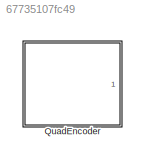
MODEL slx_67735107fc49
KIND model
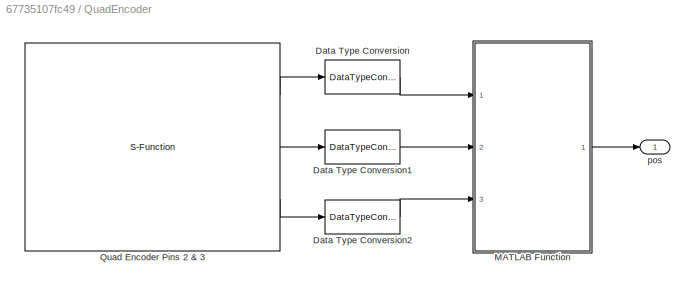
BLOCK [SubSystem] QuadEncoder
  FunctionWithSeparateData = off
  MaskHideContents = off
  MinAlgLoopOccurrences = off
  Opaque = off
  Ports = [0, 1]
  PropExecContextOutsideSubsystem = off
  RTWSystemCode = Auto
  RequestExecContextInheritance = off
BLOCK [DataTypeConversion] QuadEncoder/Data Type Conversion
  OutDataTypeStr = double
  RndMeth = Floor
  SaturateOnIntegerOverflow = off
BLOCK [DataTypeConversion] QuadEncoder/Data Type Conversion1
  OutDataTypeStr = double
  RndMeth = Floor
  SaturateOnIntegerOverflow = off
BLOCK [DataTypeConversion] QuadEncoder/Data Type Conversion2
  OutDataTypeStr = double
  RndMeth = Floor
  SaturateOnIntegerOverflow = off
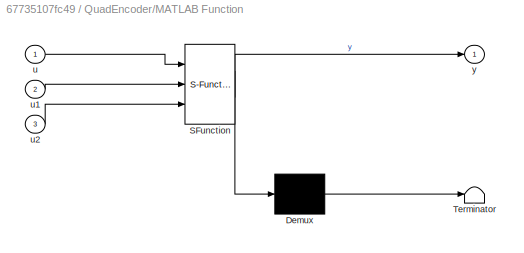
BLOCK [SubSystem] QuadEncoder/MATLAB Function
  ErrorFcn = Stateflow.Translate.translate
  FunctionWithSeparateData = off
  MaskHideContents = off
  MinAlgLoopOccurrences = off
  Opaque = off
  PermitHierarchicalResolution = ExplicitOnly
  Ports = [3, 1]
  PropExecContextOutsideSubsystem = off
  RTWSystemCode = Auto
  RequestExecContextInheritance = off
  SFBlockType = MATLAB Function
  TreatAsAtomicUnit = on
BLOCK [Demux] QuadEncoder/MATLAB Function/ Demux 
  Outputs = 1
  Ports = [1, 1]
BLOCK [S-Function] QuadEncoder/MATLAB Function/ SFunction 
  EnableBusSupport = on
  FunctionName = sf_sfun
  PortCounts = [3 2]
  Ports = [3, 2]
  Tag = Stateflow S-Function QuadEncoder_SFunction_carion 1
BLOCK [Terminator] QuadEncoder/MATLAB Function/ Terminator 
BLOCK [Inport] QuadEncoder/MATLAB Function/u
  IconDisplay = Port number
BLOCK [Inport] QuadEncoder/MATLAB Function/u1
  IconDisplay = Port number
  Port = 2
BLOCK [Inport] QuadEncoder/MATLAB Function/u2
  IconDisplay = Port number
  Port = 3
BLOCK [Outport] QuadEncoder/MATLAB Function/y
  IconDisplay = Port number
BLOCK [S-Function] QuadEncoder/Quad Encoder Pins 2 & 3
  CopyFcn = set_param(gcbh,'LinkStatus','none')
  EnableBusSupport = off
  FunctionName = sf_QuadEncoderCarion
  InitFcn = try, set_param(gcb,'FunctionName','sf_QuadEncoderCarion'), end
  OpenFcn = sfunctionwizard(gcbh)
  Parameters = uint8(0),uint8(2),uint8(3)
  Ports = [0, 3]
  PreSaveFcn = try, set_param(gcb,'FunctionName','sf_QuadEncoderCarion'), end
  SFunctionModules = sf_QuadEncoderCarion_wrapper
BLOCK [Outport] QuadEncoder/pos
  IconDisplay = Port number
LINE QuadEncoder/Data Type Conversion1:1 -> QuadEncoder/MATLAB Function:2
LINE QuadEncoder/Data Type Conversion2:1 -> QuadEncoder/MATLAB Function:3
LINE QuadEncoder/Data Type Conversion:1 -> QuadEncoder/MATLAB Function:1
LINE QuadEncoder/MATLAB Function:1 -> QuadEncoder/pos:1
LINE QuadEncoder/Quad Encoder Pins 2 & 3:1 -> QuadEncoder/Data Type Conversion:1
LINE QuadEncoder/Quad Encoder Pins 2 & 3:2 -> QuadEncoder/Data Type Conversion1:1
LINE QuadEncoder/Quad Encoder Pins 2 & 3:3 -> QuadEncoder/Data Type Conversion2:1
